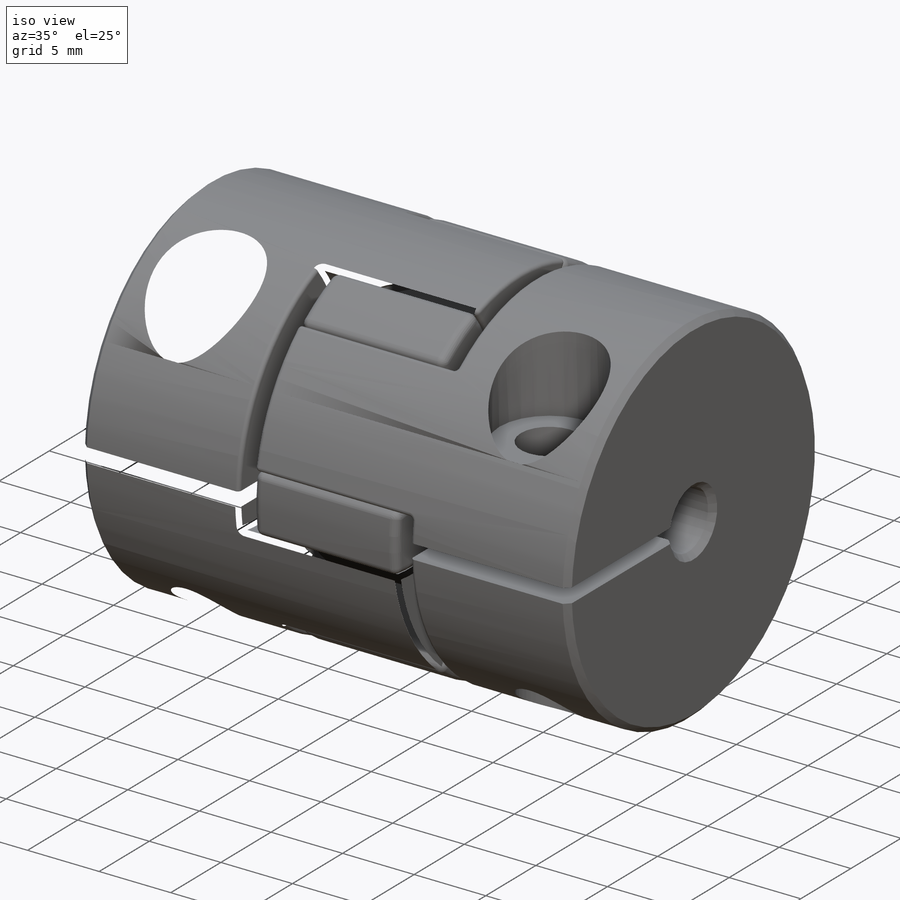
[diagram: iso view]
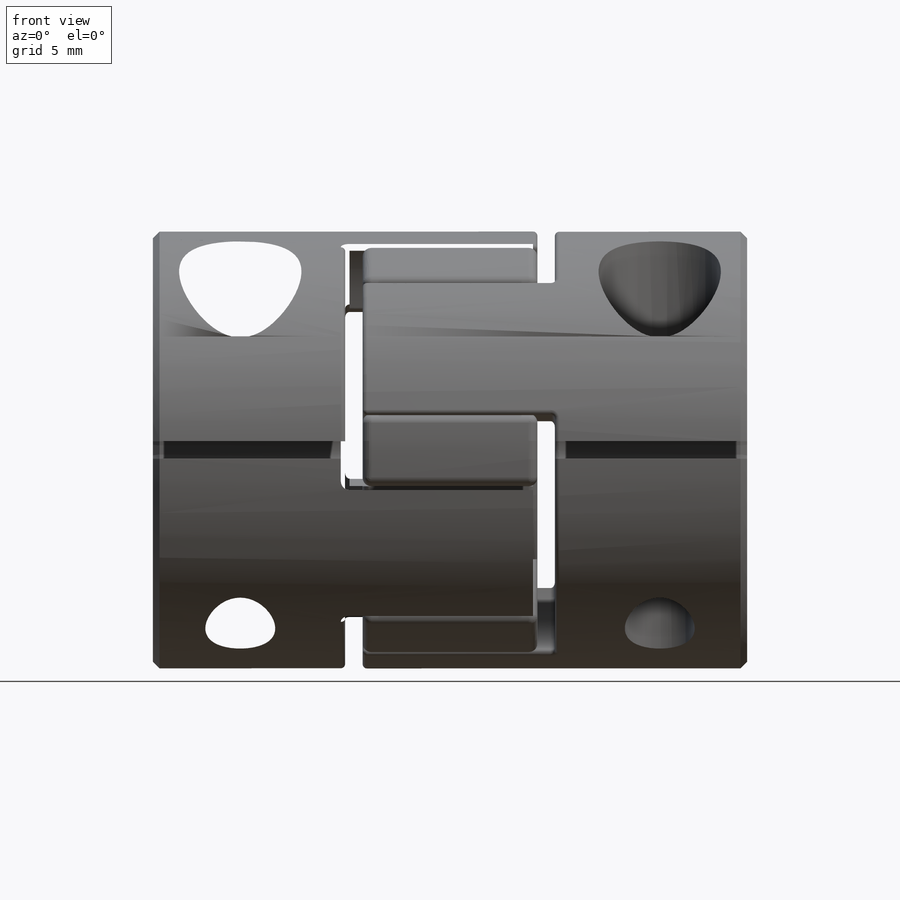
[diagram: front view]
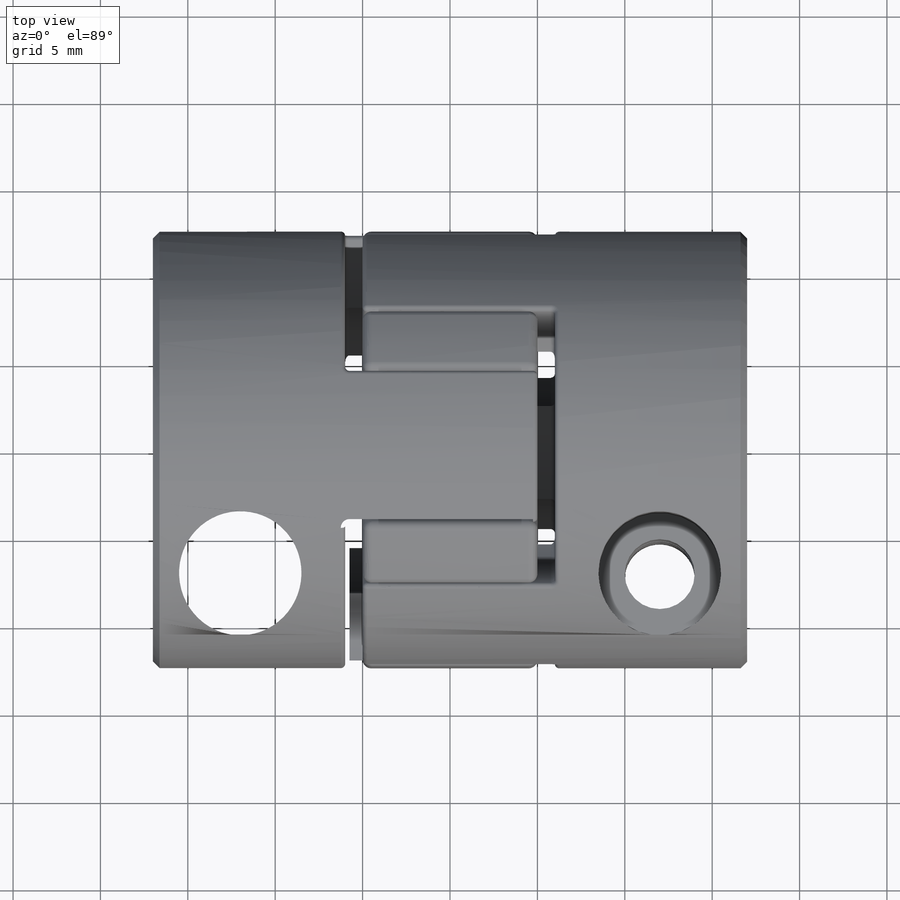
[diagram: top view]
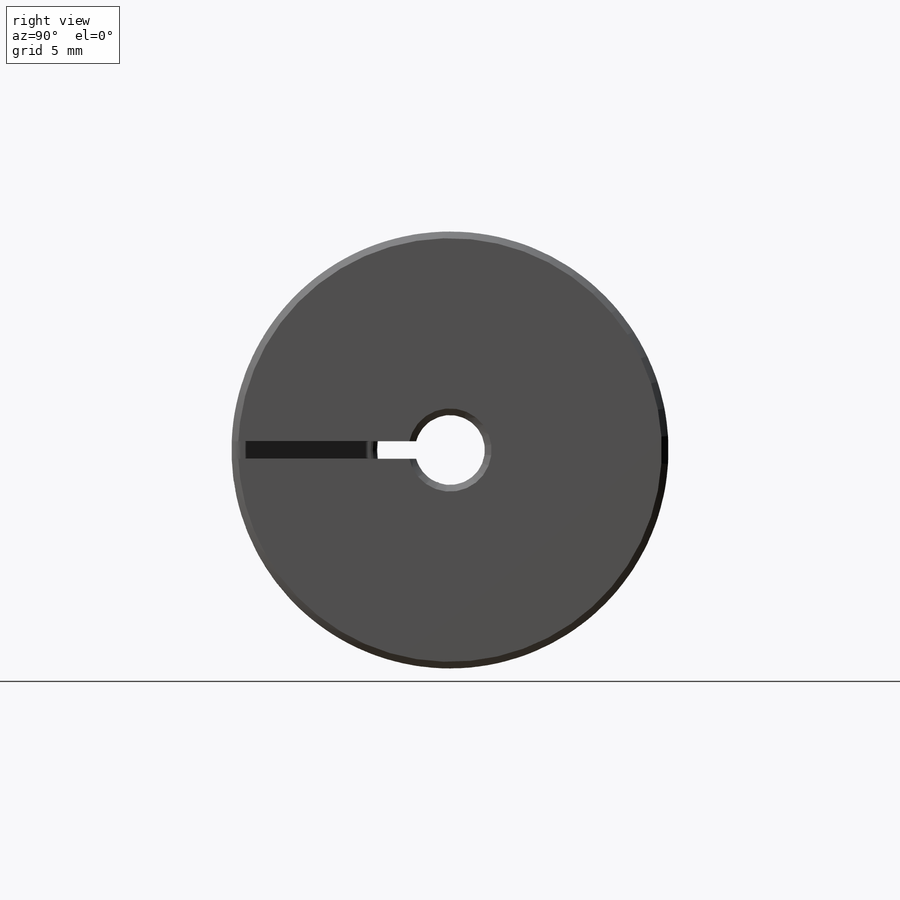
[diagram: right view]
SOLIDWORKS PART (.sldprt)
format: sldprt  version: not decoded by parser v0  size: 1,401,344 bytes
history: native  units: mm
features: sketch x13, plane x10, cut_extrude x7, extrude x6, fillet x4, mirror x2, material x1, chamfer x1 + 1 further entry (+17 scaffold rows collapsed)
feature tree (62):
  scaffold x17  (default folders/planes/origin — collapsed)
  material  "Material <not specified>"
  "Design Table"
  sketch  "Sketch1"  dims[dim D=25.0mm]
  extrude  "Boss-Extrude1"  Depth=34mm dim L=34mm
  sketch  "Sketch2"  dims[dim d2=4.0mm]
  cut_extrude  "Cut-Extrude1"  [1 undecoded]
  chamfer  "Chamfer1"  Distance=0.381mm Angle=45deg
  sketch  "Sketch5"
  cut_extrude  "Cut-Extrude2"  Depth=2.54mm
  plane  "L1"  Offset=11mm Dim L1=11mm
  sketch  "Sketch9"
  cut_extrude  "Cut-Extrude5"  [1 undecoded]
  mirror  "Mirror5"
  plane  "S"  Offset=1mm Dim S=1mm
  plane  "L2"  Offset=10mm Dim L2=10mm
  sketch  "Sketch10"  dims[D1=3.0 D2=3.0]
  extrude  "Boss-Extrude2"  [1 undecoded]
  sketch  "Sketch11"  dims[D1=0.0mm D2=2.0 D3=3.0]
  extrude  "Boss-Extrude3"  [1 undecoded]
  sketch  "Sketch12"  dims[D2=~3.08671mm D1=6.0]
  extrude  "Boss-Extrude4"  [1 undecoded]
  fillet  "Fillet1"  Radius=0.25mm
  fillet  "Fillet2"  Radius=0.5mm
  fillet  "Fillet3"  Radius=0.25mm
  sketch  "Sketch13"
  cut_extrude  "Cut-Extrude6"  Depth=1mm
  sketch  "Sketch14"  dims[Dim M=4.0mm Dim L3=5.0mm]
  cut_extrude  "Cut-Extrude7"  [1 undecoded]
  plane  "Plane1"  Offset=5mm
  plane  "Plane2"
  plane  "Plane6"
  plane  "Plane7"
  sketch  "Sketch15"  dims[Dim Head Dia=7.0mm]
  cut_extrude  "Cut-Extrude8"  [1 undecoded]
  sketch  "Sketch16"
  extrude  "Boss-Extrude5"  Depth=4mm Dim Hex Height=4mm
  sketch  "Sketch17"  dims[Dim Hex Key=3.0mm]
  cut_extrude  "Cut-Extrude9"  Depth=4mm
  plane  "Plane3"
  plane  "Plane4"
  plane  "Plane5"
  sketch  "Sketch18"
  extrude  "Boss-Extrude6"  [1 undecoded]
  fillet  "Fillet4"  Radius=0.5mm
  mirror  "Mirror6"
decode coverage: 18 of 33 modeling features carry decoded parameters; 1 rows unclassified (native names shown)
note: ~ marks probable driven/reference dimensions
note: 8 parameter values undecoded
summary: no parameter record found for 8 features
note: suppression state not decoded; provenance and decode notes live in map.json
